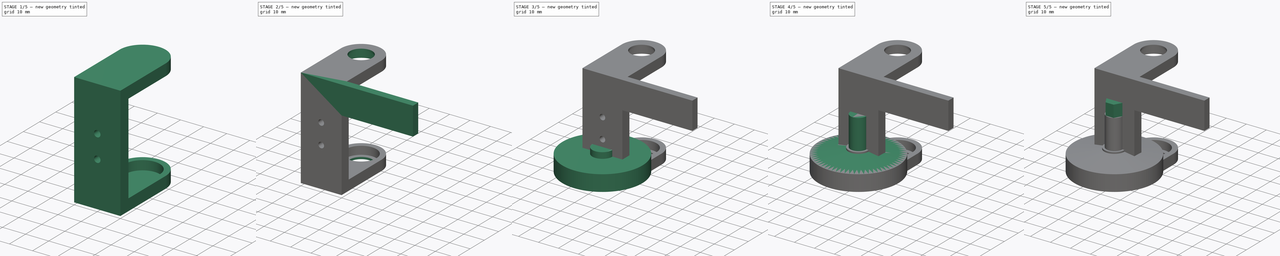
[diagram: build sequence overview — one tinted view per stage of 5, left to right]
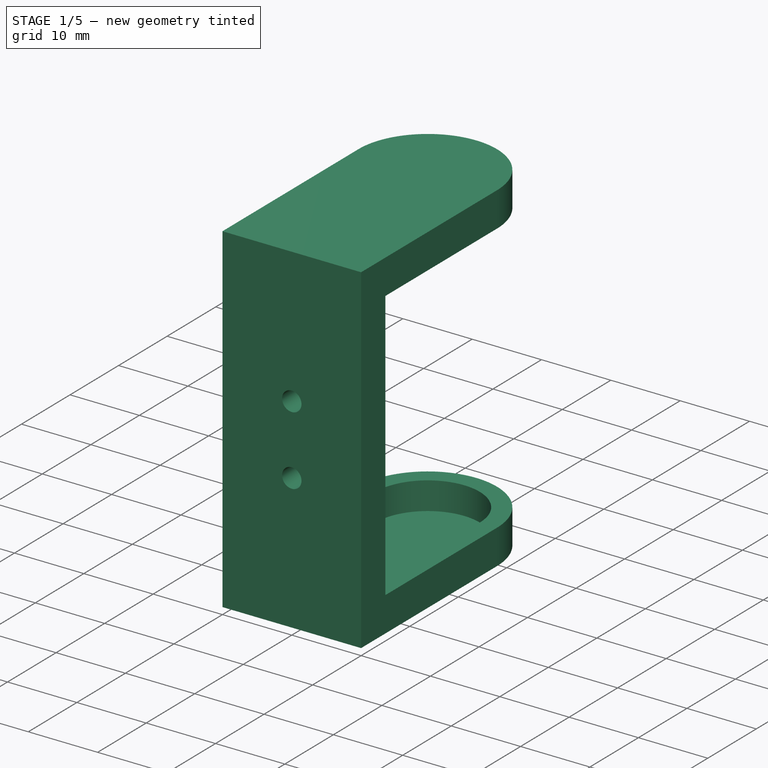
[diagram: stage 1 of 5 — iso view after this stage's code; geometry added in this stage tinted green]
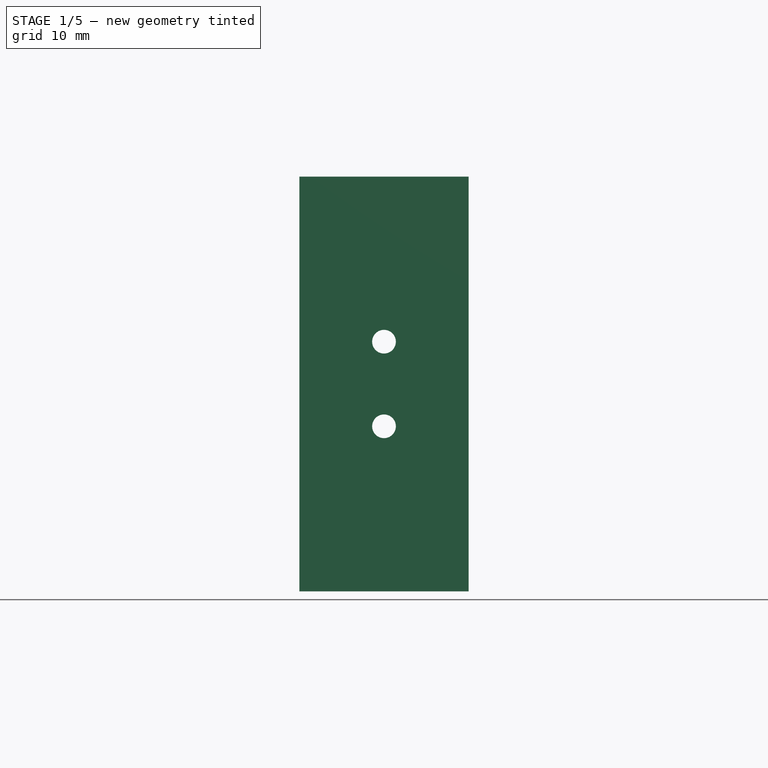
[diagram: stage 1 of 5 — front view after this stage's code; geometry added in this stage tinted green]
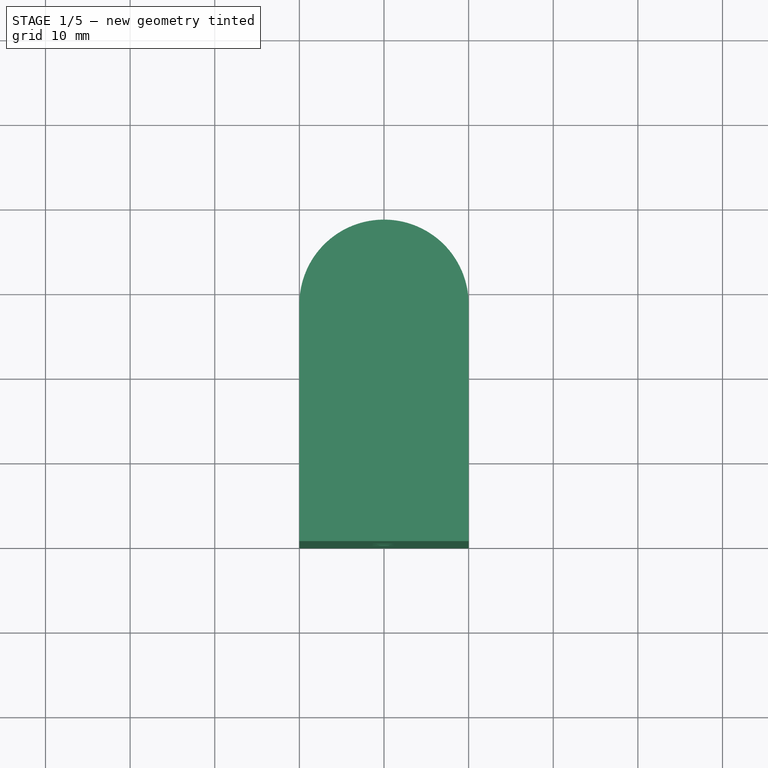
[diagram: stage 1 of 5 — top view after this stage's code; geometry added in this stage tinted green]
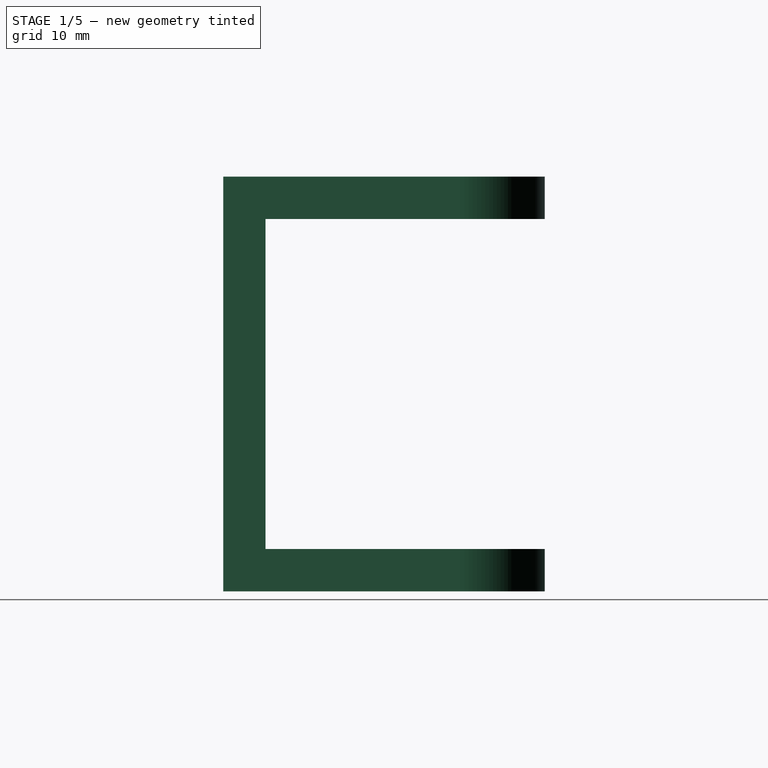
[diagram: stage 1 of 5 — right view after this stage's code; geometry added in this stage tinted green]
FCSTD DOCUMENT  (FreeCAD 1.0R39109 (Git))
Label: freeSpinWheel
License: All rights reserved
LicenseURL: http://en.wikipedia.org/wiki/All_rights_reserved
objects: Sketcher::SketchObject×18, PartDesign::Pocket×10, PartDesign::Pad×7, PartDesign::Body×4, PartDesign::Revolution×2, App::VarSet×1
note: 97 computed .brp shape members not serialized (recipe doc carries the construction recipe); baked Part::Feature solids carry a one-line shape summary decoded from their .brp

FEATURE [PartDesign::Body] Body001  label="wirePoolTop"
  AllowCompound = false
  Group = -> [Sketch006,Pad004,Sketch007,Revolution001,Sketch008,Pocket001,Sketch009,Pocket002]
  Origin = -> Origin001
  Placement = pos=(0,0,36.9) rot=(1,0,0;3.14159rad)
  Tip = -> Pocket002
FEATURE [Sketcher::SketchObject] Sketch010
  ArcFitTolerance = 1e-06
  AttachmentOffset = pos=(0,0,-5) rot=(0,0,1;0rad)
  AttachmentSupport = -> [XY_Plane002]
  FullyConstrained = true
  MakeInternals = false
  MapMode = 5
  Placement = pos=(0,0,-5) rot=(0,0,1;0rad)
  expr: .AttachmentOffset.Base.z = -VarSet.bigClamThickness
  expr: Constraints[8] = VarSet.bigClamWidth
  expr: Constraints[9] = VarSet.bigClamToRodCenter
  sketch-geometry (4):
    g0: LineSegment StartX=-10 StartY=0 StartZ=0 EndX=10 EndY=0 EndZ=0
    g1: LineSegment StartX=10 StartY=0 StartZ=0 EndX=10 EndY=28 EndZ=0
    g2: LineSegment StartX=-10 StartY=0 StartZ=0 EndX=-10 EndY=28 EndZ=0
    g3: ArcOfCircle CenterX=0 CenterY=28 CenterZ=0 NormalX=0 NormalY=0 NormalZ=1 AngleXU=0 Radius=10 StartAngle=1e-16 EndAngle=3.14159
  constraints (11):
    c: PointOnObject(g0,g-1)
    c: PointOnObject(g0,g-1)
    c: Coincident(g1,g0)
    c: Vertical(g1)
    c: Coincident(g2,g0)
    c: Vertical(g2)
    c: PointOnObject(g3,g-2)
    c: Tangent(g3,g2) = 1.5708
    c: DistanceX(g0,g0) = 20
    c: DistanceY(g-1,g3) = 28
    c: Tangent(g3,g1) = -1.5708
FEATURE [Sketcher::SketchObject] Sketch011  label="centerCavety"
  ArcFitTolerance = 1e-06
  AttachmentOffset = pos=(0,0,-5) rot=(0,0,1;0rad)
  AttachmentSupport = -> [XZ_Plane002]
  FullyConstrained = true
  MakeInternals = false
  MapMode = 5
  Placement = pos=(0,5,-1.1e-15) rot=(1,0,0;1.5708rad)
  expr: .AttachmentOffset.Base.z = -VarSet.bigClamThickness
  expr: Constraints[10] = VarSet.bigClamInBetween
  expr: Constraints[9] = VarSet.bigClamWidth
  sketch-geometry (4):
    g0: LineSegment StartX=-10 StartY=39 StartZ=0 EndX=-10 EndY=0 EndZ=0
    g1: LineSegment StartX=-10 StartY=0 StartZ=0 EndX=10 EndY=0 EndZ=0
    g2: LineSegment StartX=10 StartY=0 StartZ=0 EndX=10 EndY=39 EndZ=0
    g3: LineSegment StartX=10 StartY=39 StartZ=0 EndX=-10 EndY=39 EndZ=0
  constraints (11):
    c: Coincident(g0,g1)
    c: Coincident(g1,g2)
    c: Coincident(g2,g3)
    c: Coincident(g3,g0)
    c: Vertical(g0)
    c: Vertical(g2)
    c: Horizontal(g3)
    c: PointOnObject(g1,g-1)
    c: Symmetric(g1,g0,g-2)
    c: DistanceX(g3,g3) = 20
    c: DistanceY(g2,g2) = 39
FEATURE [PartDesign::Pad] Pad005
  Direction = (0,0,1)
  Length = 49
  Length2 = 10
  Profile = -> Sketch010
  ReferenceAxis = -> Sketch010 [N_Axis]
  Refine = true
  Suppressed = false
  Type = 0
  expr: Length = VarSet.bigClamInBetween + VarSet.bigClamThickness * 2
FEATURE [PartDesign::Pocket] Pocket003
  BaseFeature = -> Pad005
  Direction = (0,1,-2e-16)
  Length = 5
  Length2 = 5
  Profile = -> Sketch011
  ReferenceAxis = -> Sketch011 [N_Axis]
  Refine = true
  Suppressed = false
  Type = 1
FEATURE [Sketcher::SketchObject] Sketch012  label="screwHoles"
  ArcFitTolerance = 1e-06
  AttachmentSupport = -> [XZ_Plane002]
  FullyConstrained = true
  MakeInternals = false
  MapMode = 5
  Placement = pos=(0,0,0) rot=(1,0,0;1.5708rad)
  expr: Constraints[2] = VarSet.bigClamScrewBetween
  expr: Constraints[3] = (VarSet.bigClamInBetween - VarSet.bigClamScrewBetween) / 2
  expr: Constraints[7] = VarSet.m3ScrewTight
  sketch-geometry (3):
    g0: LineSegment [constr] StartX=0 StartY=24.5 StartZ=0 EndX=0 EndY=14.5 EndZ=0
    g1: Circle CenterX=0 CenterY=24.5 CenterZ=0 NormalX=0 NormalY=0 NormalZ=1 AngleXU=0 Radius=1.4
    g2: Circle CenterX=0 CenterY=14.5 CenterZ=0 NormalX=0 NormalY=0 NormalZ=1 AngleXU=0 Radius=1.4
  constraints (8):
    c: PointOnObject(g0,g-2)
    c: PointOnObject(g0,g-2)
    c: DistanceY(g0,g0) = 10
    c: DistanceY(g-1,g0) = 14.5
    c: Coincident(g1,g0)
    c: Coincident(g2,g0)
    c: Equal(g1,g2)
    c: Radius(g1) = 1.4
FEATURE [PartDesign::Pocket] Pocket004
  BaseFeature = -> Pocket003
  Direction = (0,1,-2e-16)
  Length = 5
  Length2 = 5
  Profile = -> Sketch012
  ReferenceAxis = -> Sketch012 [N_Axis]
  Refine = true
  Suppressed = false
  Type = 1
FEATURE [Sketcher::SketchObject] Sketch013  label="socket"
  ArcFitTolerance = 1e-06
  AttachmentSupport = -> [XY_Plane002]
  FullyConstrained = true
  MakeInternals = false
  MapMode = 5
  expr: Constraints[1] = VarSet.bigClamToRodCenter
  expr: Constraints[2] = VarSet.bearingOuterR
  sketch-geometry (1):
    g0: Circle CenterX=0 CenterY=28 CenterZ=0 NormalX=0 NormalY=0 NormalZ=1 AngleXU=0 Radius=7.501
  constraints (3):
    c: PointOnObject(g0,g-2)
    c: DistanceY(g-1,g0) = 28
    c: Radius(g0) = 7.501
FEATURE [PartDesign::Pocket] Pocket005
  BaseFeature = -> Pocket004
  Direction = (0,0,-1)
  Length = 4
  Length2 = 5
  Profile = -> Sketch013
  ReferenceAxis = -> Sketch013 [N_Axis]
  Refine = true
  Suppressed = false
  Type = 0
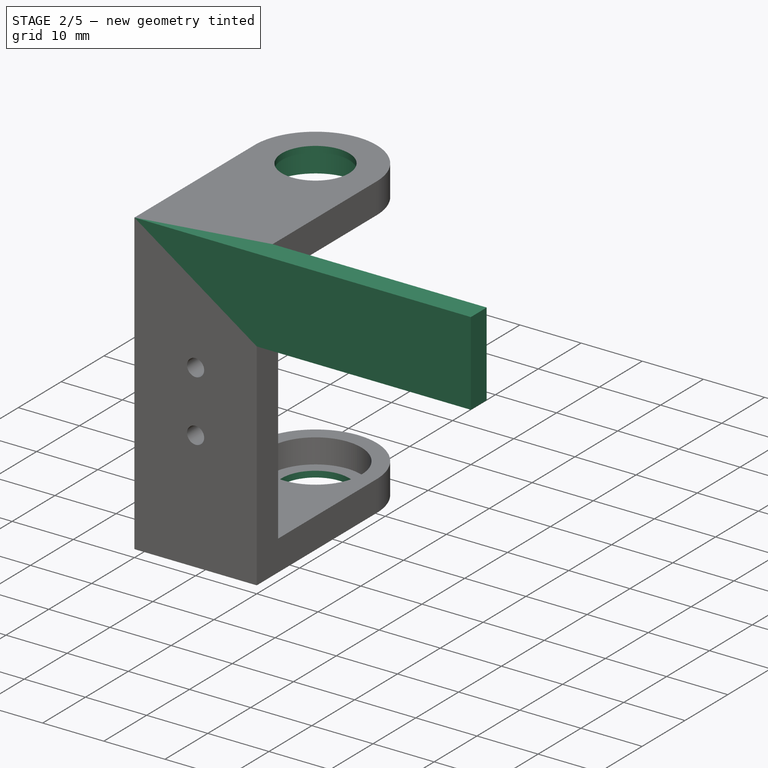
[diagram: stage 2 of 5 — iso view after this stage's code; geometry added in this stage tinted green]
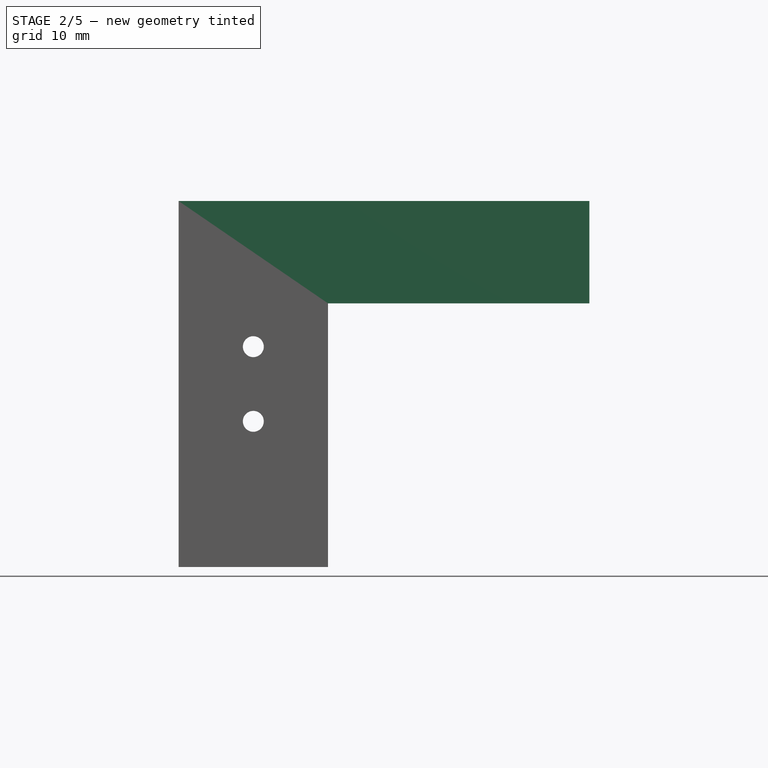
[diagram: stage 2 of 5 — front view after this stage's code; geometry added in this stage tinted green]
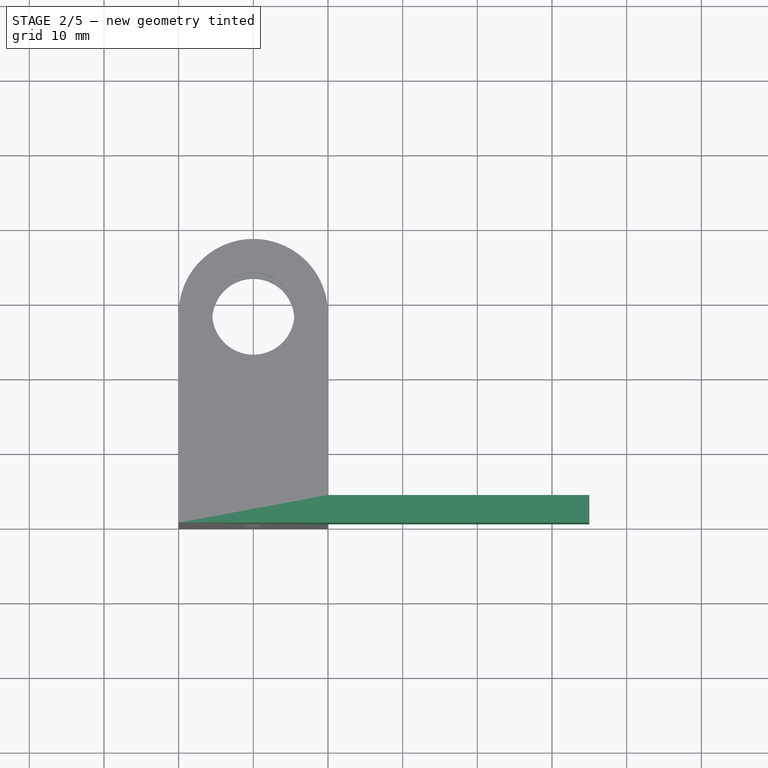
[diagram: stage 2 of 5 — top view after this stage's code; geometry added in this stage tinted green]
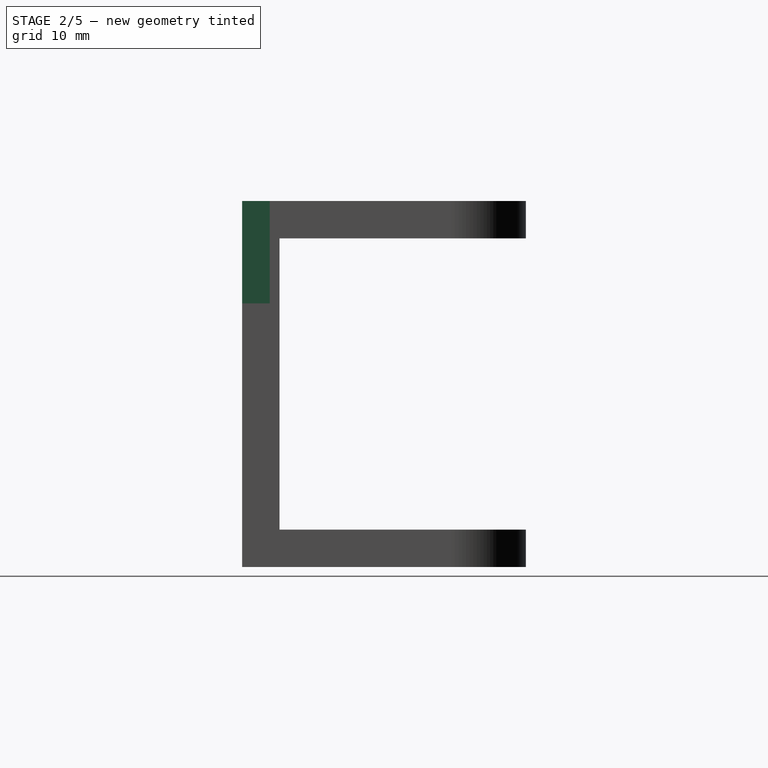
[diagram: stage 2 of 5 — right view after this stage's code; geometry added in this stage tinted green]
FEATURE [PartDesign::Pocket] Pocket006
  BaseFeature = -> Pocket005
  Direction = (0,0,-1)
  Length = 43
  Length2 = 5
  Profile = -> Sketch013
  ReferenceAxis = -> Sketch013 [N_Axis]
  Refine = true
  Reversed = true
  Suppressed = false
  Type = 0
  expr: Length = VarSet.bigClamInBetween + 4 mm
FEATURE [Sketcher::SketchObject] Sketch014  label="socket001"
  ArcFitTolerance = 1e-06
  AttachmentSupport = -> [XY_Plane002]
  FullyConstrained = true
  MakeInternals = false
  MapMode = 5
  expr: Constraints[1] = VarSet.bigClamToRodCenter
  expr: Constraints[2] = VarSet.bearingOuterR - 2 mm
  sketch-geometry (1):
    g0: Circle CenterX=0 CenterY=28 CenterZ=0 NormalX=0 NormalY=0 NormalZ=1 AngleXU=0 Radius=5.501
  constraints (3):
    c: PointOnObject(g0,g-2)
    c: DistanceY(g-1,g0) = 28
    c: Radius(g0) = 5.501
FEATURE [PartDesign::Pocket] Pocket007
  BaseFeature = -> Pocket006
  Direction = (0,0,-1)
  Length = 5
  Length2 = 5
  Midplane = true
  Profile = -> Sketch014
  ReferenceAxis = -> Sketch014 [N_Axis]
  Refine = true
  Suppressed = false
  Type = 1
FEATURE [PartDesign::Body] Body003  label="connector"
  AllowCompound = false
  Group = -> [Sketch015,Pad006,Sketch016,Pocket008]
  Origin = -> Origin003
  Placement = pos=(0,0,32) rot=(0,0,1;0rad)
  Tip = -> Pocket008
FEATURE [Sketcher::SketchObject] Sketch017  label="insert"
  ArcFitTolerance = 1e-06
  AttachmentSupport = -> [XZ_Plane002]
  FullyConstrained = true
  MakeInternals = false
  MapMode = 5
  Placement = pos=(0,0,0) rot=(1,0,0;1.5708rad)
  expr: Constraints[11] = VarSet.bigClamInBetween + VarSet.bigClamThickness
  expr: Constraints[8] = VarSet.bigClamWidth / 2
  expr: Constraints[9] = VarSet.insertHeight - VarSet.insertAdj
  sketch-geometry (4):
    g0: LineSegment StartX=10 StartY=30.3 StartZ=0 EndX=45 EndY=30.3 EndZ=0
    g1: LineSegment StartX=45 StartY=30.3 StartZ=0 EndX=45 EndY=44 EndZ=0
    g2: LineSegment StartX=45 StartY=44 StartZ=0 EndX=10 EndY=44 EndZ=0
    g3: LineSegment StartX=10 StartY=44 StartZ=0 EndX=10 EndY=30.3 EndZ=0
  constraints (12):
    c: Coincident(g0,g1)
    c: Coincident(g1,g2)
    c: Coincident(g2,g3)
    c: Coincident(g3,g0)
    c: Horizontal(g0)
    c: Horizontal(g2)
    c: Vertical(g1)
    c: Vertical(g3)
    c: DistanceX(g-1,g0) = 10
    c: DistanceY(g1,g1) = 13.7
    c: DistanceX(g2,g2) = 35
    c: DistanceY(g-1,g2) = 44
FEATURE [PartDesign::Pad] Pad007
  BaseFeature = -> Pocket007
  Direction = (0,-1,2e-16)
  Length = 3.7
  Length2 = 10
  Profile = -> Sketch017
  ReferenceAxis = -> Sketch017 [N_Axis]
  Refine = true
  Reversed = true
  Suppressed = false
  Type = 0
  expr: Length = VarSet.insertWidth - VarSet.insertAdj
FEATURE [Sketcher::SketchObject] Sketch018
  ArcFitTolerance = 1e-06
  AttachmentSupport = -> [XZ_Plane002]
  FullyConstrained = false
  MakeInternals = false
  MapMode = 5
  Placement = pos=(0,0,0) rot=(1,0,0;1.5708rad)
  sketch-geometry (4):
    g0: LineSegment StartX=-19.5291 StartY=69.1084 StartZ=0 EndX=-19.5291 EndY=-17.4173 EndZ=0
    g1: LineSegment StartX=-19.5291 StartY=-17.4173 StartZ=0 EndX=15.2634 EndY=-17.4173 EndZ=0
    g2: LineSegment StartX=15.2634 StartY=-17.4173 StartZ=0 EndX=15.2634 EndY=69.1084 EndZ=0
    g3: LineSegment StartX=15.2634 StartY=69.1084 StartZ=0 EndX=-19.5291 EndY=69.1084 EndZ=0
  constraints (8):
    c: Coincident(g0,g1)
    c: Coincident(g1,g2)
    c: Coincident(g2,g3)
    c: Coincident(g3,g0)
    c: Vertical(g0)
    c: Vertical(g2)
    c: Horizontal(g1)
    c: Horizontal(g3)
FEATURE [PartDesign::Pocket] Pocket009
  BaseFeature = -> Pad007
  Direction = (0,1,-2e-16)
  Length = 40
  Length2 = 5
  Profile = -> Sketch018
  ReferenceAxis = -> Sketch018 [N_Axis]
  Refine = true
  Suppressed = true
  Type = 0
FEATURE [PartDesign::Body] Body002  label="bigClam"
  AllowCompound = false
  Group = -> [Sketch010,Sketch011,Pad005,Pocket003,Sketch012,Pocket004,Sketch013,Pocket005,Pocket006,Sketch014,Pocket007,Sketch017,Pad007,Sketch018,Pocket009]
  Origin = -> Origin002
  Placement = pos=(0,-28,-1) rot=(1,0,0;0rad)
  Tip = -> Pocket009
  expr: .Placement.Base.y = -VarSet.bigClamToRodCenter
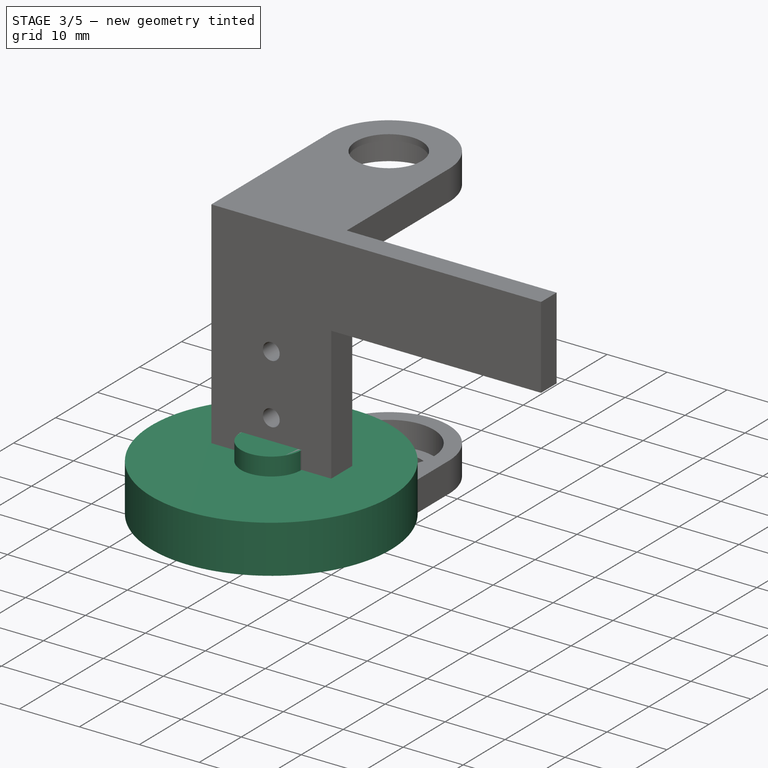
[diagram: stage 3 of 5 — iso view after this stage's code; geometry added in this stage tinted green]
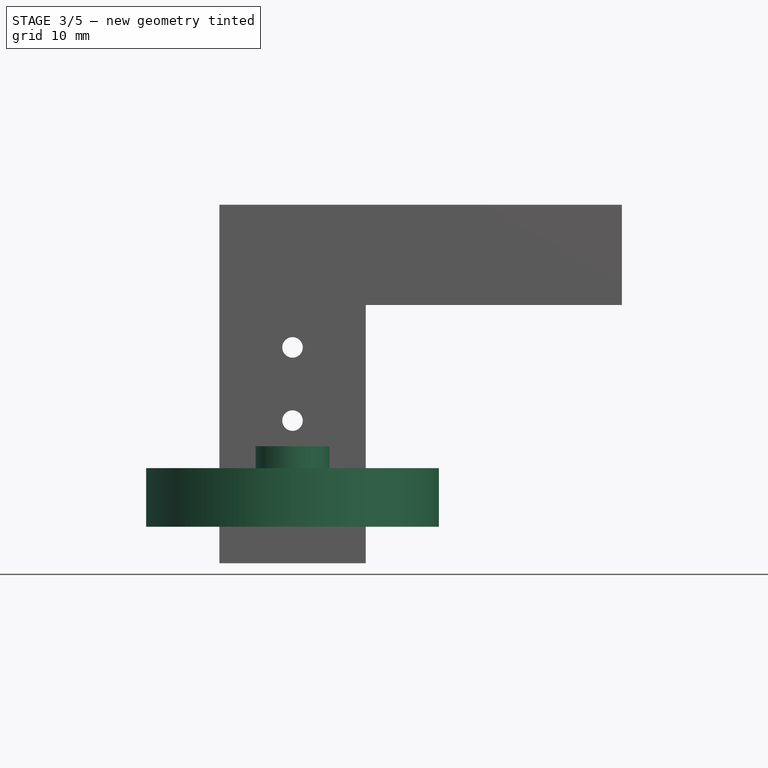
[diagram: stage 3 of 5 — front view after this stage's code; geometry added in this stage tinted green]
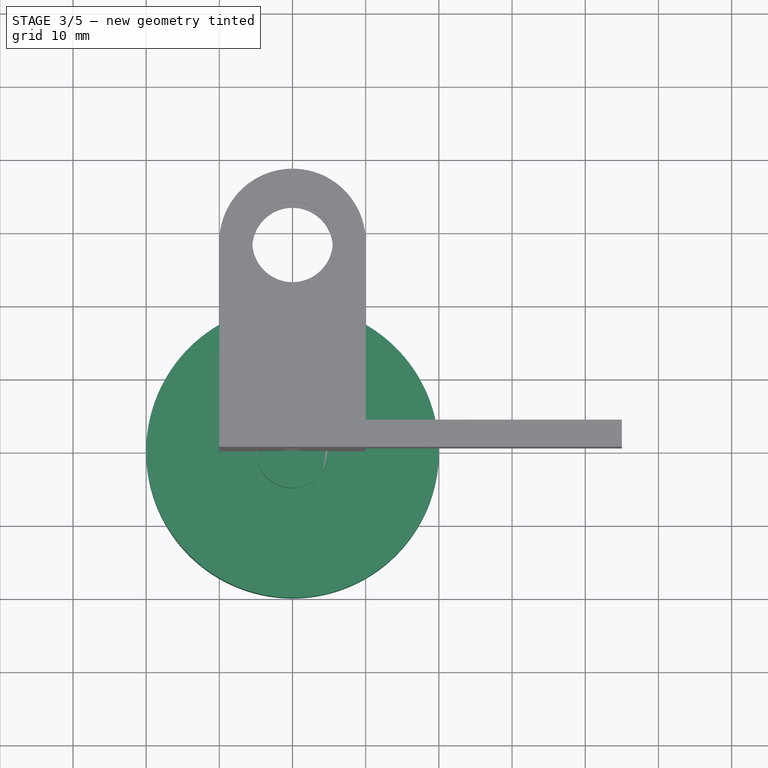
[diagram: stage 3 of 5 — top view after this stage's code; geometry added in this stage tinted green]
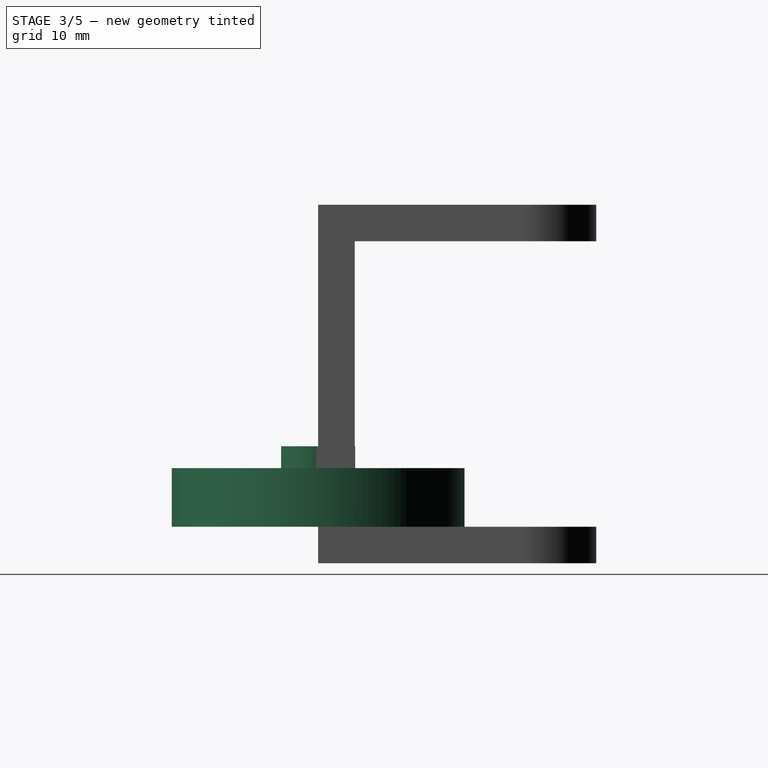
[diagram: stage 3 of 5 — right view after this stage's code; geometry added in this stage tinted green]
FEATURE [PartDesign::Body] Body  label="wirePoolBase"
  AllowCompound = false
  Group = -> [Sketch,Pad,Sketch002,Pad002,Sketch003,Revolution,Sketch004,Sketch005,Pad003,Pocket]
  Origin = -> Origin
  Tip = -> Pocket
FEATURE [Sketcher::SketchObject] Sketch006  label="base"
  ArcFitTolerance = 1e-06
  AttachmentSupport = -> [XY_Plane001]
  FullyConstrained = true
  MakeInternals = false
  MapMode = 5
  expr: Constraints[1] = VarSet.wheelR
  sketch-geometry (1):
    g0: Circle CenterX=0 CenterY=0 CenterZ=0 NormalX=0 NormalY=0 NormalZ=1 AngleXU=0 Radius=20
  constraints (2):
    c: Coincident(g0,g-1)
    c: Radius(g0) = 20
FEATURE [PartDesign::Pad] Pad004
  Direction = (0,0,1)
  Length = 8
  Length2 = 10
  Profile = -> Sketch006
  ReferenceAxis = -> Sketch006 [N_Axis]
  Refine = true
  Suppressed = false
  Type = 0
  expr: Length = VarSet.baseThickness
FEATURE [Sketcher::SketchObject] Sketch015
  ArcFitTolerance = 1e-06
  AttachmentSupport = -> [XY_Plane003]
  FullyConstrained = true
  MakeInternals = false
  MapMode = 5
  expr: Constraints[1] = VarSet.bearingHoleR
  sketch-geometry (1):
    g0: Circle CenterX=0 CenterY=0 CenterZ=0 NormalX=0 NormalY=0 NormalZ=1 AngleXU=0 Radius=5.05
  constraints (2):
    c: Coincident(g0,g-1)
    c: Radius(g0) = 5.05
FEATURE [PartDesign::Pad] Pad006
  Direction = (0,0,1)
  Length = 11
  Length2 = 10
  Profile = -> Sketch015
  ReferenceAxis = -> Sketch015 [N_Axis]
  Refine = true
  Suppressed = false
  Type = 0
FEATURE [Sketcher::SketchObject] Sketch016  label="hexSocket"
  ArcFitTolerance = 1e-06
  AttachmentSupport = -> [XY_Plane003]
  FullyConstrained = false
  MakeInternals = false
  MapMode = 5
  expr: Constraints[19] = VarSet.hexSocketMaleR - 0.1 mm
  sketch-geometry (8):
    g0: LineSegment StartX=4.84 StartY=0 StartZ=0 EndX=2.42 EndY=4.19156 EndZ=0
    g1: LineSegment StartX=2.42 StartY=4.19156 StartZ=0 EndX=-2.42 EndY=4.19156 EndZ=0
    g2: LineSegment StartX=-2.42 StartY=4.19156 StartZ=0 EndX=-4.84 EndY=6.8985e-12 EndZ=0
    g3: LineSegment StartX=-4.84 StartY=6.8985e-12 StartZ=0 EndX=-2.42 EndY=-4.19156 EndZ=0
    g4: LineSegment StartX=-2.42 StartY=-4.19156 StartZ=0 EndX=2.42 EndY=-4.19156 EndZ=0
    g5: LineSegment StartX=2.42 StartY=-4.19156 StartZ=0 EndX=4.84 EndY=0 EndZ=0
    g6: Circle [constr] CenterX=0 CenterY=0 CenterZ=0 NormalX=0 NormalY=0 NormalZ=1 AngleXU=0 Radius=4.84
    g7: Circle CenterX=0 CenterY=0 CenterZ=0 NormalX=0 NormalY=0 NormalZ=1 AngleXU=0 Radius=11.3055
  constraints (17):
    c: Coincident(g0,g1)
    c: Coincident(g1,g2)
    c: Coincident(g2,g3)
    c: Coincident(g3,g4)
    c: Coincident(g4,g5)
    c: Coincident(g5,g0)
    c: Equal(g0, g1-g5) x5
    c: PointOnObject(g0,g6)
    c: PointOnObject(g1,g6)
    c: PointOnObject(g2,g6)
    c: PointOnObject(g3,g6)
    c: PointOnObject(g4,g6)
    c: PointOnObject(g5,g6)
    c: Coincident(g6,g-1)
    c: PointOnObject(g5,g-1)
    c: Radius(g6) = 4.84
    c: Coincident(g7,g6)
FEATURE [PartDesign::Pocket] Pocket008
  BaseFeature = -> Pad006
  Direction = (0,0,-1)
  Length = 5
  Length2 = 5
  Profile = -> Sketch016
  ReferenceAxis = -> Sketch016 [N_Axis]
  Refine = true
  Reversed = true
  Suppressed = false
  Type = 0
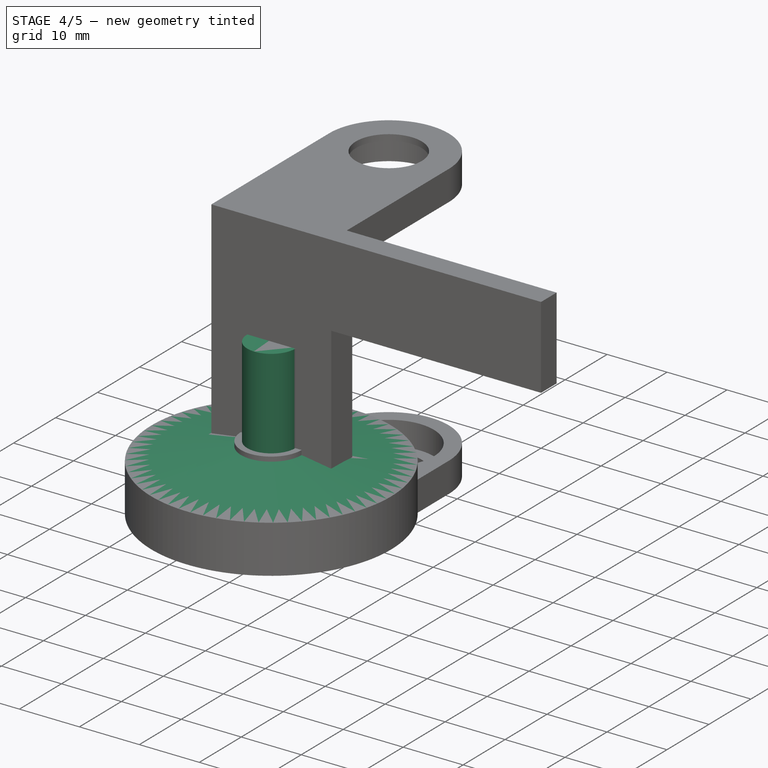
[diagram: stage 4 of 5 — iso view after this stage's code; geometry added in this stage tinted green]
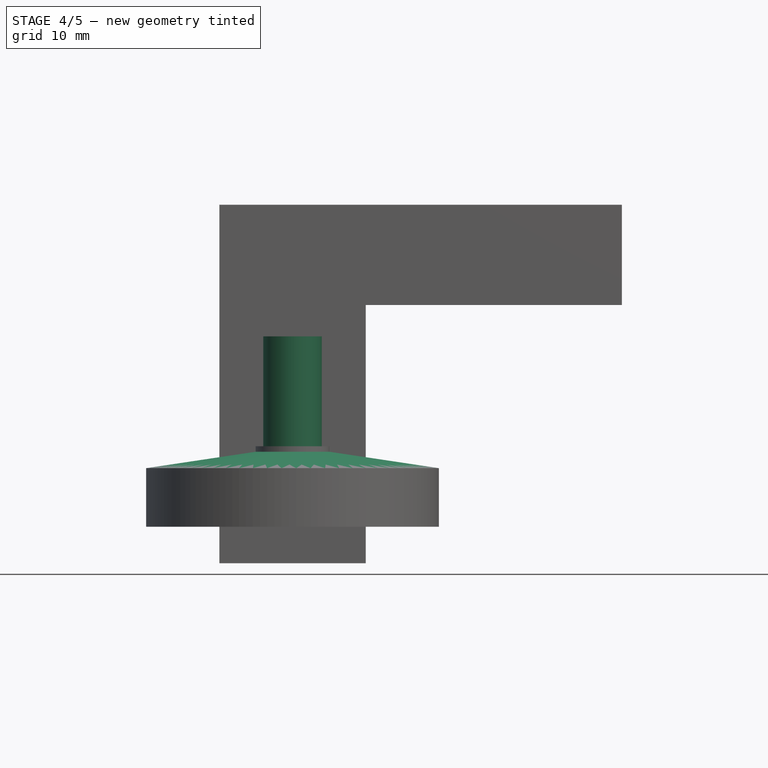
[diagram: stage 4 of 5 — front view after this stage's code; geometry added in this stage tinted green]
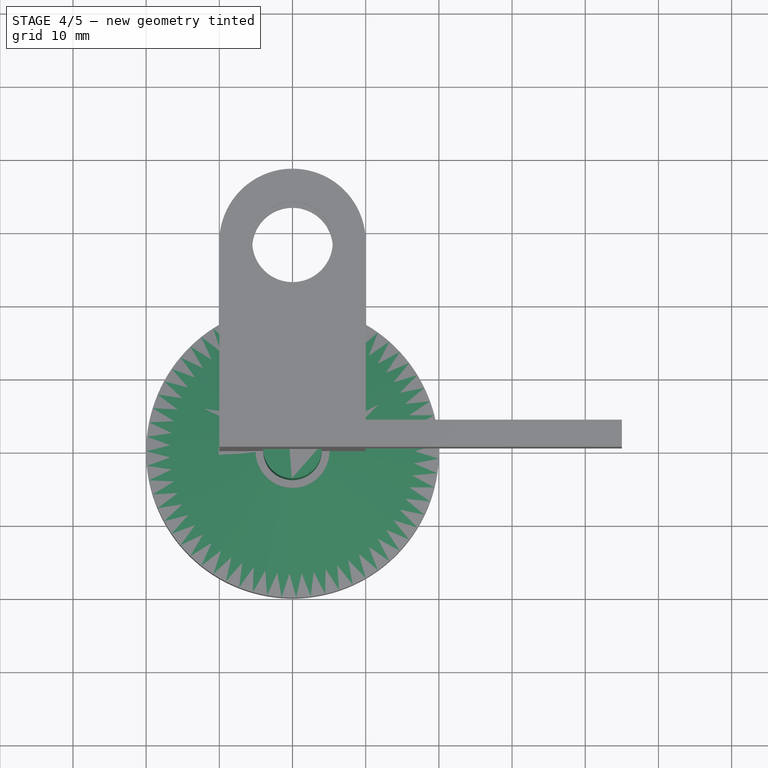
[diagram: stage 4 of 5 — top view after this stage's code; geometry added in this stage tinted green]
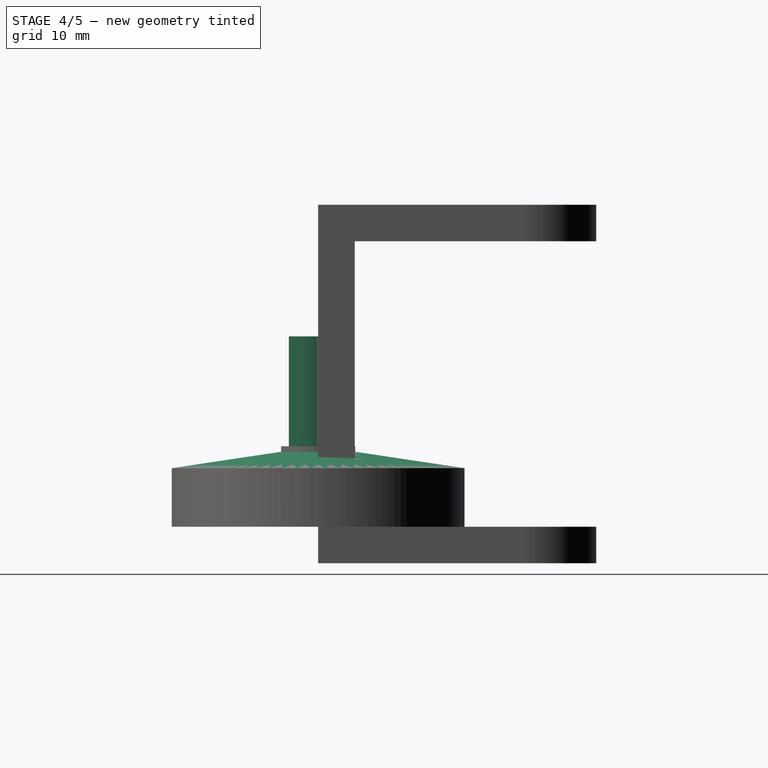
[diagram: stage 4 of 5 — right view after this stage's code; geometry added in this stage tinted green]
FEATURE [App::VarSet] VarSet
  adj = 0.02
  baseThickness = 8
  bearingHoleR = 5.05
  bearingInnerTightR = 5.03
  bearingOuterR = 7.501
  bigClamInBetween = 39
  bigClamScrewBetween = 10
  bigClamThickness = 5
  bigClamToRodCenter = 28
  bigClamWidth = 20
  hexSocketFemaleR = 4.965
  hexSocketMaleR = 4.94
  insertAdj = 0.3
  insertHeight = 14
  insertThickness = 3
  insertWidth = 4
  m3ScrewTight = 1.4
  poolSlopH = 3
  threadPoolR = 4
  wheelR = 20
  wirePoolLen = 15
  wirePoolLenWithBaseAdded = 26
  expr: bearingHoleR = bearingInnerTightR + adj
  expr: bigClamToRodCenter = wheelR + bigClamThickness + 3 mm
  expr: wirePoolLenWithBaseAdded = baseThickness + wirePoolLen + insertThickness
FEATURE [Sketcher::SketchObject] Sketch
  ArcFitTolerance = 1e-06
  AttachmentSupport = -> [XY_Plane]
  FullyConstrained = true
  MakeInternals = false
  MapMode = 5
  expr: Constraints[1] = VarSet.threadPoolR
  sketch-geometry (1):
    g0: Circle CenterX=0 CenterY=0 CenterZ=0 NormalX=0 NormalY=0 NormalZ=1 AngleXU=0 Radius=4
  constraints (2):
    c: Coincident(g0,g-1)
    c: Radius(g0) = 4
FEATURE [PartDesign::Pad] Pad
  Direction = (0,0,1)
  Length = 26
  Length2 = 10
  Profile = -> Sketch
  ReferenceAxis = -> Sketch [N_Axis]
  Refine = true
  Suppressed = false
  Type = 0
  expr: Length = VarSet.wirePoolLenWithBaseAdded
FEATURE [Sketcher::SketchObject] Sketch007
  ArcFitTolerance = 1e-06
  AttachmentSupport = -> [XZ_Plane001]
  FullyConstrained = true
  MakeInternals = false
  MapMode = 5
  Placement = pos=(0,0,0) rot=(1,0,0;1.5708rad)
  expr: Constraints[6] = VarSet.baseThickness
  expr: Constraints[7] = VarSet.wheelR
  sketch-geometry (3):
    g0: LineSegment StartX=0 StartY=8 StartZ=0 EndX=20 EndY=8 EndZ=0
    g1: LineSegment StartX=20 StartY=8 StartZ=0 EndX=0 EndY=11 EndZ=0
    g2: LineSegment StartX=0 StartY=11 StartZ=0 EndX=0 EndY=8 EndZ=0
  constraints (9):
    c: PointOnObject(g0,g-2)
    c: Horizontal(g0)
    c: Coincident(g1,g0)
    c: PointOnObject(g1,g-2)
    c: Coincident(g2,g1)
    c: Coincident(g2,g0)
    c: DistanceY(g-1,g0) = 8
    c: DistanceX(g0,g0) = 20
    c: DistanceY(g2,g2) = 3
FEATURE [PartDesign::Revolution] Revolution001
  Angle = 360
  Angle2 = 60
  Axis = (0,2e-16,1)
  Base = (0,0,0)
  BaseFeature = -> Pad004
  Profile = -> Sketch007
  ReferenceAxis = -> Sketch007 [V_Axis]
  Refine = true
  Reversed = true
  Suppressed = false
  Type = 0
FEATURE [Sketcher::SketchObject] Sketch008
  ArcFitTolerance = 1e-06
  AttachmentOffset = pos=(0,0,11) rot=(0,0,1;0rad)
  AttachmentSupport = -> [XY_Plane001]
  FullyConstrained = true
  MakeInternals = false
  MapMode = 5
  Placement = pos=(0,0,11) rot=(0,0,1;0rad)
  expr: .AttachmentOffset.Base.z = VarSet.poolSlopH + VarSet.baseThickness
  expr: Constraints[19] = VarSet.threadPoolR + VarSet.adj
  sketch-geometry (7):
    g0: LineSegment StartX=4.02 StartY=0 StartZ=0 EndX=2.01 EndY=3.48142 EndZ=0
    g1: LineSegment StartX=2.01 StartY=3.48142 StartZ=0 EndX=-2.01 EndY=3.48142 EndZ=0
    g2: LineSegment StartX=-2.01 StartY=3.48142 StartZ=0 EndX=-4.02 EndY=-6.15303e-11 EndZ=0
    g3: LineSegment StartX=-4.02 StartY=-6.15303e-11 StartZ=0 EndX=-2.01 EndY=-3.48142 EndZ=0
    g4: LineSegment StartX=-2.01 StartY=-3.48142 StartZ=0 EndX=2.01 EndY=-3.48142 EndZ=0
    g5: LineSegment StartX=2.01 StartY=-3.48142 StartZ=0 EndX=4.02 EndY=0 EndZ=0
    g6: Circle [constr] CenterX=0 CenterY=0 CenterZ=0 NormalX=0 NormalY=0 NormalZ=1 AngleXU=0 Radius=4.02
  constraints (16):
    c: Coincident(g0,g1)
    c: Coincident(g1,g2)
    c: Coincident(g2,g3)
    c: Coincident(g3,g4)
    c: Coincident(g4,g5)
    c: Coincident(g5,g0)
    c: Equal(g0, g1-g5) x5
    c: PointOnObject(g0,g6)
    c: PointOnObject(g1,g6)
    c: PointOnObject(g2,g6)
    c: PointOnObject(g3,g6)
    c: PointOnObject(g4,g6)
    c: PointOnObject(g5,g6)
    c: Coincident(g6,g-1)
    c: PointOnObject(g5,g-1)
    c: Radius(g6) = 4.02
FEATURE [PartDesign::Pocket] Pocket001
  BaseFeature = -> Revolution001
  Direction = (0,0,-1)
  Length = 6
  Length2 = 5
  Profile = -> Sketch008
  ReferenceAxis = -> Sketch008 [N_Axis]
  Refine = true
  Suppressed = false
  Type = 0
  expr: Length = VarSet.poolSlopH + VarSet.insertThickness
FEATURE [Sketcher::SketchObject] Sketch009
  ArcFitTolerance = 1e-06
  AttachmentSupport = -> [XY_Plane001]
  FullyConstrained = true
  MakeInternals = false
  MapMode = 5
  expr: Constraints[19] = VarSet.hexSocketFemaleR
  sketch-geometry (7):
    g0: LineSegment StartX=4.965 StartY=0 StartZ=0 EndX=2.4825 EndY=4.29982 EndZ=0
    g1: LineSegment StartX=2.4825 StartY=4.29982 StartZ=0 EndX=-2.4825 EndY=4.29982 EndZ=0
    g2: LineSegment StartX=-2.4825 StartY=4.29982 StartZ=0 EndX=-4.965 EndY=4.0039e-12 EndZ=0
    g3: LineSegment StartX=-4.965 StartY=4.0039e-12 StartZ=0 EndX=-2.4825 EndY=-4.29982 EndZ=0
    g4: LineSegment StartX=-2.4825 StartY=-4.29982 StartZ=0 EndX=2.4825 EndY=-4.29982 EndZ=0
    g5: LineSegment StartX=2.4825 StartY=-4.29982 StartZ=0 EndX=4.965 EndY=0 EndZ=0
    g6: Circle [constr] CenterX=1e-16 CenterY=0 CenterZ=0 NormalX=0 NormalY=0 NormalZ=1 AngleXU=0 Radius=4.965
  constraints (16):
    c: Coincident(g0,g1)
    c: Coincident(g1,g2)
    c: Coincident(g2,g3)
    c: Coincident(g3,g4)
    c: Coincident(g4,g5)
    c: Coincident(g5,g0)
    c: Equal(g0, g1-g5) x5
    c: PointOnObject(g0,g6)
    c: PointOnObject(g1,g6)
    c: PointOnObject(g2,g6)
    c: PointOnObject(g3,g6)
    c: PointOnObject(g4,g6)
    c: PointOnObject(g5,g6)
    c: Coincident(g6,g-1)
    c: PointOnObject(g5,g-1)
    c: Radius(g6) = 4.965
FEATURE [PartDesign::Pocket] Pocket002
  BaseFeature = -> Pocket001
  Direction = (0,0,-1)
  Length = 5
  Length2 = 5
  Profile = -> Sketch009
  ReferenceAxis = -> Sketch009 [N_Axis]
  Refine = true
  Reversed = true
  Suppressed = false
  Type = 0
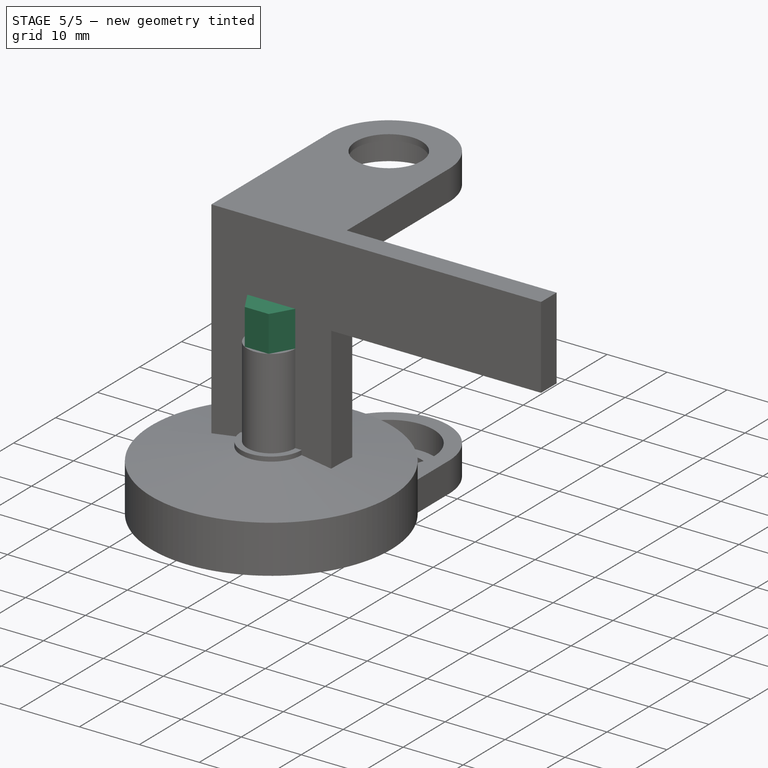
[diagram: stage 5 of 5 — iso view after this stage's code; geometry added in this stage tinted green]
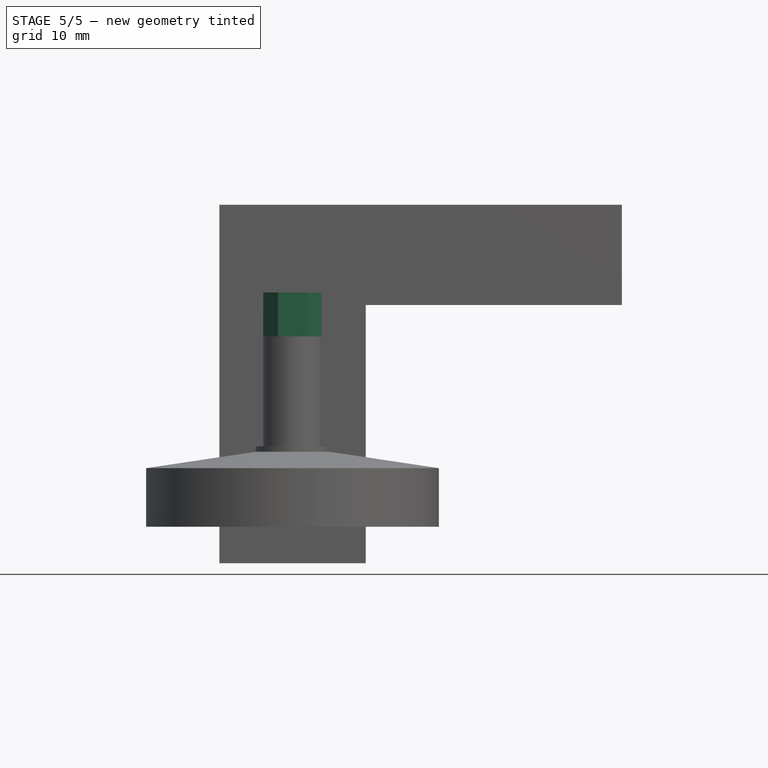
[diagram: stage 5 of 5 — front view after this stage's code; geometry added in this stage tinted green]
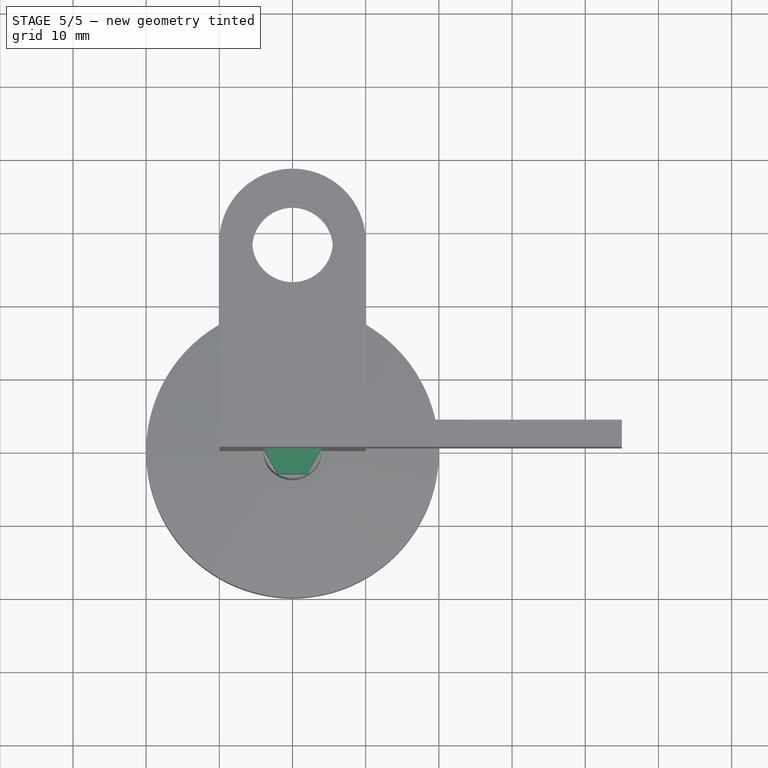
[diagram: stage 5 of 5 — top view after this stage's code; geometry added in this stage tinted green]
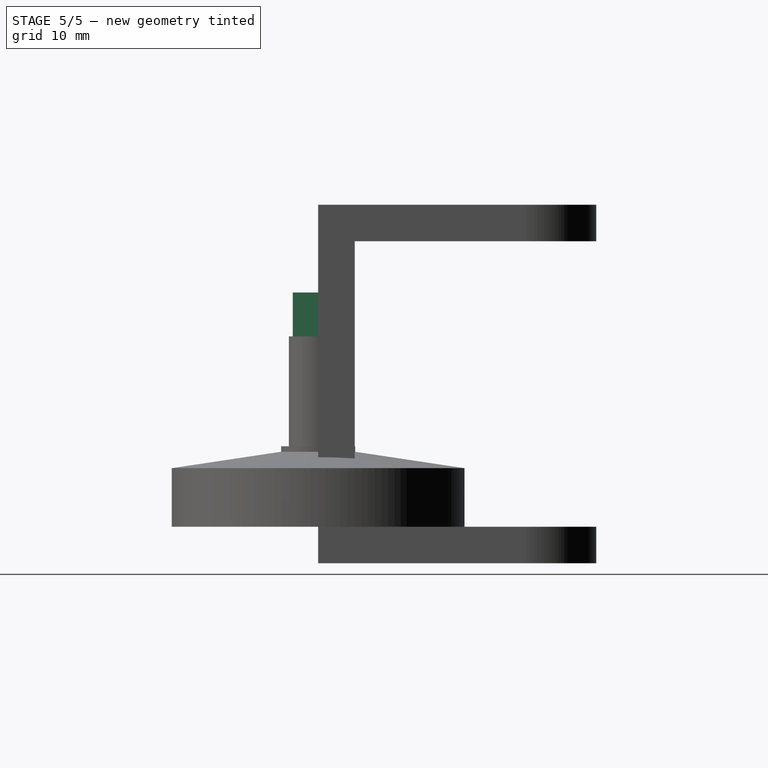
[diagram: stage 5 of 5 — right view after this stage's code; geometry added in this stage tinted green]
FEATURE [Sketcher::SketchObject] Sketch002
  ArcFitTolerance = 1e-06
  AttachmentSupport = -> [XY_Plane]
  FullyConstrained = true
  MakeInternals = false
  MapMode = 5
  expr: Constraints[1] = VarSet.wheelR
  sketch-geometry (1):
    g0: Circle CenterX=0 CenterY=0 CenterZ=0 NormalX=0 NormalY=0 NormalZ=1 AngleXU=0 Radius=20
  constraints (2):
    c: Coincident(g0,g-1)
    c: Radius(g0) = 20
FEATURE [PartDesign::Pad] Pad002
  BaseFeature = -> Pad
  Direction = (0,0,1)
  Length = 8
  Length2 = 10
  Profile = -> Sketch002
  ReferenceAxis = -> Sketch002 [N_Axis]
  Refine = true
  Suppressed = false
  Type = 0
  expr: Length = VarSet.baseThickness
FEATURE [Sketcher::SketchObject] Sketch003
  ArcFitTolerance = 1e-06
  AttachmentSupport = -> [XZ_Plane]
  FullyConstrained = true
  MakeInternals = false
  MapMode = 5
  Placement = pos=(0,0,0) rot=(1,0,0;1.5708rad)
  expr: Constraints[6] = VarSet.baseThickness
  expr: Constraints[7] = VarSet.wheelR
  sketch-geometry (3):
    g0: LineSegment StartX=0 StartY=8 StartZ=0 EndX=20 EndY=8 EndZ=0
    g1: LineSegment StartX=20 StartY=8 StartZ=0 EndX=0 EndY=11 EndZ=0
    g2: LineSegment StartX=0 StartY=11 StartZ=0 EndX=0 EndY=8 EndZ=0
  constraints (9):
    c: PointOnObject(g0,g-2)
    c: Horizontal(g0)
    c: Coincident(g1,g0)
    c: PointOnObject(g1,g-2)
    c: Coincident(g2,g1)
    c: Coincident(g2,g0)
    c: DistanceY(g-1,g0) = 8
    c: DistanceX(g0,g0) = 20
    c: DistanceY(g2,g2) = 3
FEATURE [PartDesign::Revolution] Revolution
  Angle = 360
  Angle2 = 60
  Axis = (0,2e-16,1)
  Base = (0,0,0)
  BaseFeature = -> Pad002
  Profile = -> Sketch003
  ReferenceAxis = -> Sketch003 [V_Axis]
  Refine = true
  Reversed = true
  Suppressed = false
  Type = 0
FEATURE [Sketcher::SketchObject] Sketch004  label="baseConnFemal"
  ArcFitTolerance = 1e-06
  AttachmentSupport = -> [XY_Plane]
  FullyConstrained = true
  MakeInternals = false
  MapMode = 5
  expr: Constraints[19] = VarSet.hexSocketFemaleR
  sketch-geometry (7):
    g0: LineSegment StartX=4.965 StartY=0 StartZ=0 EndX=2.4825 EndY=4.29982 EndZ=0
    g1: LineSegment StartX=2.4825 StartY=4.29982 StartZ=0 EndX=-2.4825 EndY=4.29982 EndZ=0
    g2: LineSegment StartX=-2.4825 StartY=4.29982 StartZ=0 EndX=-4.965 EndY=9e-16 EndZ=0
    g3: LineSegment StartX=-4.965 StartY=9e-16 StartZ=0 EndX=-2.4825 EndY=-4.29982 EndZ=0
    g4: LineSegment StartX=-2.4825 StartY=-4.29982 StartZ=0 EndX=2.4825 EndY=-4.29982 EndZ=0
    g5: LineSegment StartX=2.4825 StartY=-4.29982 StartZ=0 EndX=4.965 EndY=0 EndZ=0
    g6: Circle [constr] CenterX=0 CenterY=0 CenterZ=0 NormalX=0 NormalY=0 NormalZ=1 AngleXU=0 Radius=4.965
  constraints (16):
    c: Coincident(g0,g1)
    c: Coincident(g1,g2)
    c: Coincident(g2,g3)
    c: Coincident(g3,g4)
    c: Coincident(g4,g5)
    c: Coincident(g5,g0)
    c: Equal(g0, g1-g5) x5
    c: PointOnObject(g0,g6)
    c: PointOnObject(g1,g6)
    c: PointOnObject(g2,g6)
    c: PointOnObject(g3,g6)
    c: PointOnObject(g4,g6)
    c: PointOnObject(g5,g6)
    c: Coincident(g6,g-1)
    c: PointOnObject(g5,g-1)
    c: Radius(g6) = 4.965
FEATURE [Sketcher::SketchObject] Sketch005
  ArcFitTolerance = 1e-06
  AttachmentSupport = -> [XY_Plane]
  FullyConstrained = true
  MakeInternals = false
  MapMode = 5
  expr: Constraints[19] = VarSet.threadPoolR
  sketch-geometry (7):
    g0: LineSegment StartX=2 StartY=-3.4641 StartZ=0 EndX=4 EndY=0 EndZ=0
    g1: LineSegment StartX=4 StartY=0 StartZ=0 EndX=2 EndY=3.4641 EndZ=0
    g2: LineSegment StartX=2 StartY=3.4641 StartZ=0 EndX=-2 EndY=3.4641 EndZ=0
    g3: LineSegment StartX=-2 StartY=3.4641 StartZ=0 EndX=-4 EndY=6.15534e-11 EndZ=0
    g4: LineSegment StartX=-4 StartY=6.15532e-11 StartZ=0 EndX=-2 EndY=-3.4641 EndZ=0
    g5: LineSegment StartX=-2 StartY=-3.4641 StartZ=0 EndX=2 EndY=-3.4641 EndZ=0
    g6: Circle [constr] CenterX=0 CenterY=0 CenterZ=0 NormalX=0 NormalY=0 NormalZ=1 AngleXU=0 Radius=4
  constraints (16):
    c: Coincident(g0,g1)
    c: Coincident(g1,g2)
    c: Coincident(g2,g3)
    c: Coincident(g3,g4)
    c: Coincident(g4,g5)
    c: Coincident(g5,g0)
    c: Equal(g0, g1-g5) x5
    c: PointOnObject(g0,g6)
    c: PointOnObject(g1,g6)
    c: PointOnObject(g2,g6)
    c: PointOnObject(g3,g6)
    c: PointOnObject(g4,g6)
    c: PointOnObject(g5,g6)
    c: Coincident(g6,g-1)
    c: PointOnObject(g0,g-1)
    c: Radius(g6) = 4
FEATURE [PartDesign::Pad] Pad003
  BaseFeature = -> Revolution
  Direction = (0,0,1)
  Length = 32
  Length2 = 10
  Profile = -> Sketch005
  ReferenceAxis = -> Sketch005 [N_Axis]
  Refine = true
  Suppressed = false
  Type = 0
  expr: Length = VarSet.wirePoolLenWithBaseAdded + 6 mm
FEATURE [PartDesign::Pocket] Pocket
  BaseFeature = -> Pad003
  Direction = (0,0,-1)
  Length = 5
  Length2 = 5
  Profile = -> Sketch004
  ReferenceAxis = -> Sketch004 [N_Axis]
  Refine = true
  Reversed = true
  Suppressed = false
  Type = 0
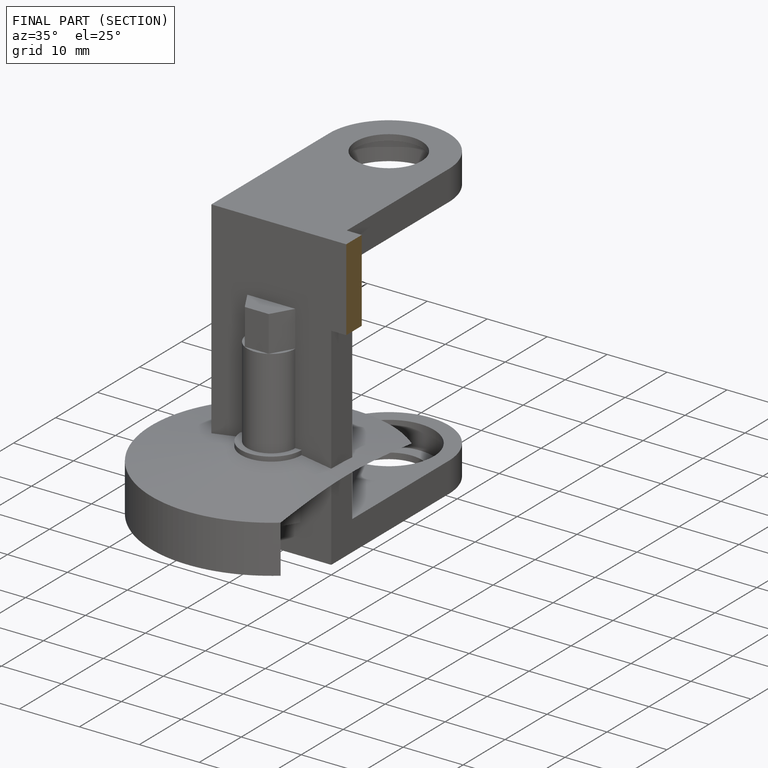
[diagram: finished part — half-section view (interior)]
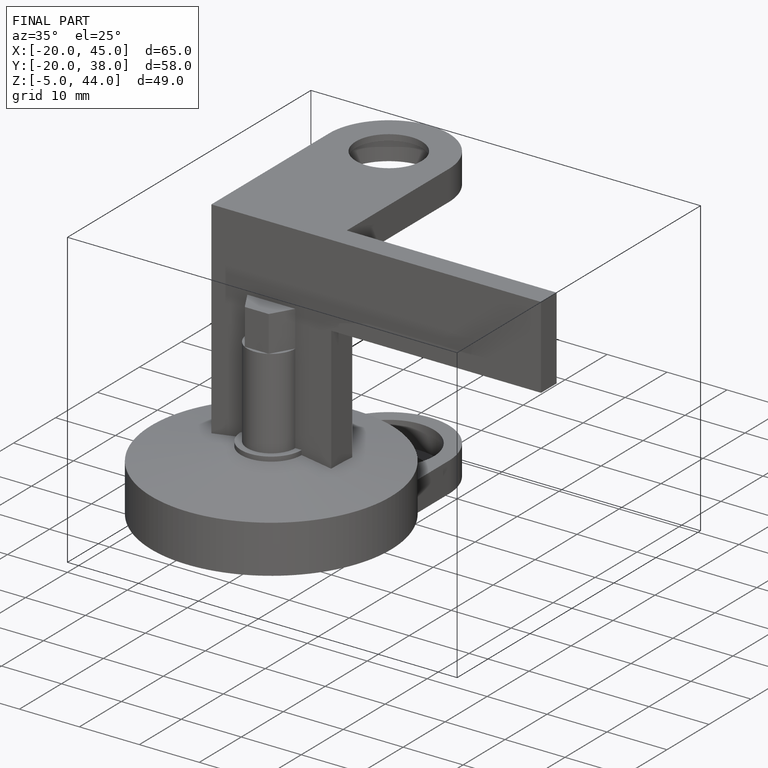
[diagram: finished part — iso view with bounding-box wireframe]
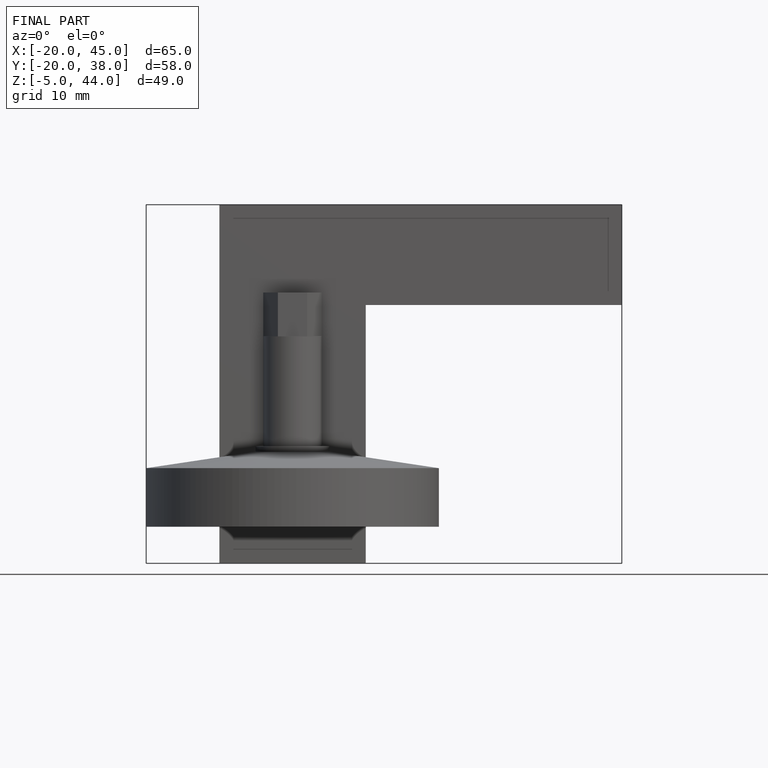
[diagram: finished part — front view with bounding-box wireframe]
